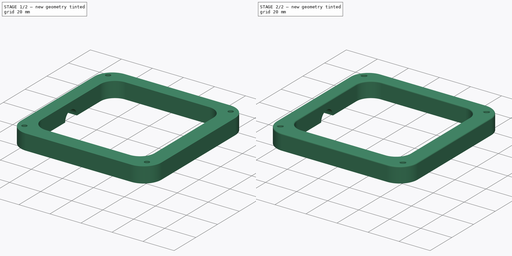
[diagram: build sequence overview — one tinted view per stage of 2, left to right]
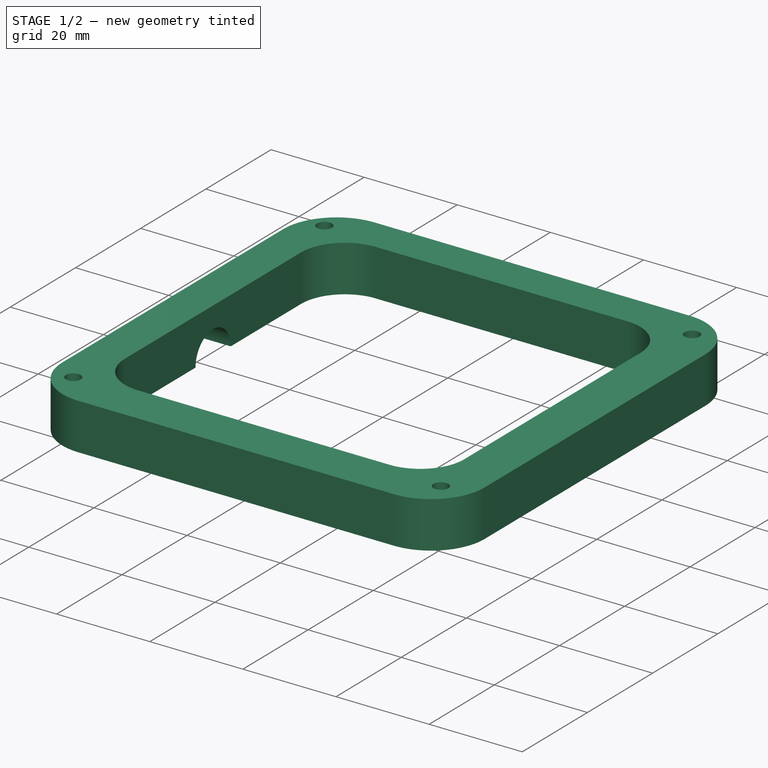
[diagram: stage 1 of 2 — iso view after this stage's code; geometry added in this stage tinted green]
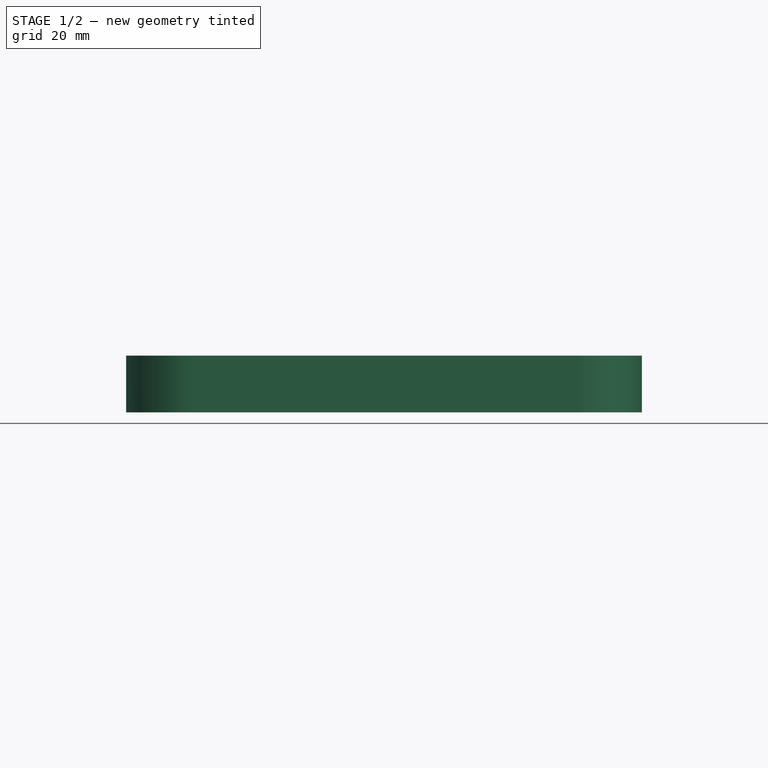
[diagram: stage 1 of 2 — front view after this stage's code; geometry added in this stage tinted green]
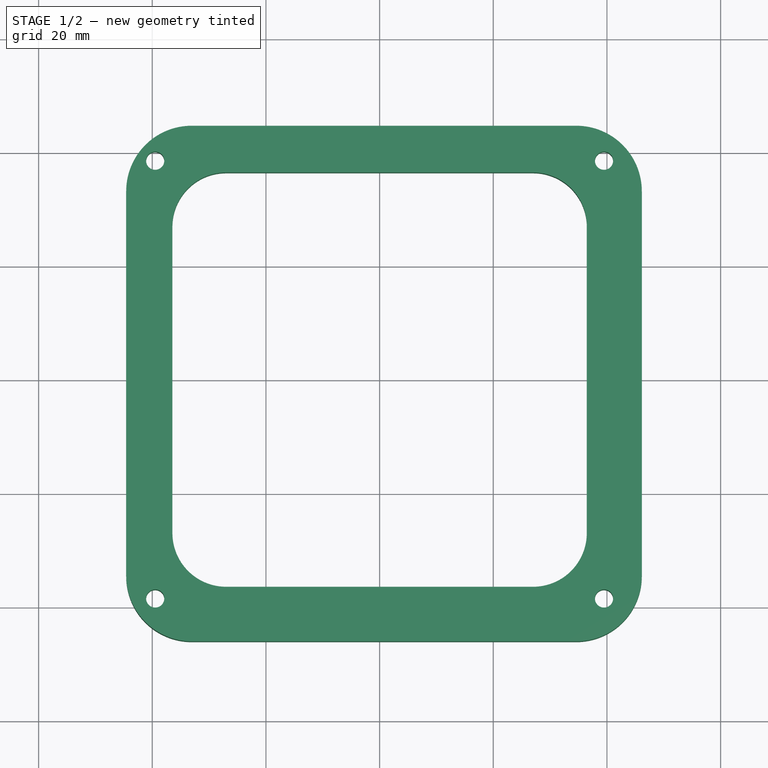
[diagram: stage 1 of 2 — top view after this stage's code; geometry added in this stage tinted green]
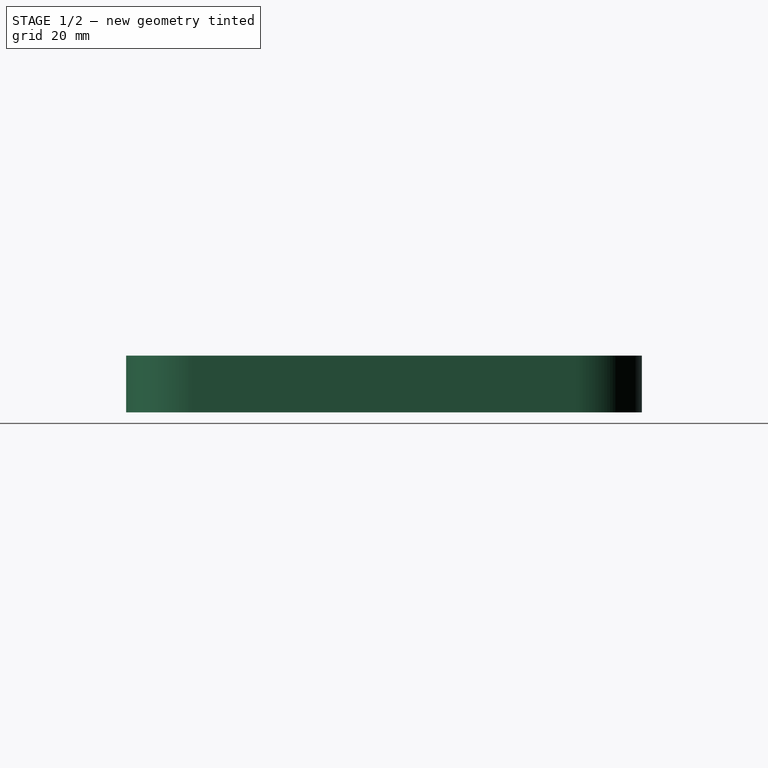
[diagram: stage 1 of 2 — right view after this stage's code; geometry added in this stage tinted green]
FCSTD DOCUMENT  (FreeCAD 0.16R)
Label: thrust_bearing_mount_base
License: All rights reserved
LicenseURL: http://en.wikipedia.org/wiki/All_rights_reserved
objects: Sketcher::SketchObject×2, PartDesign::Pad×1, PartDesign::Pocket×1, PartDesign::Fillet×1
note: 7 computed .brp shape members not serialized (recipe doc carries the construction recipe); baked Part::Feature solids carry a one-line shape summary decoded from their .brp

FEATURE [Sketcher::SketchObject] Sketch
  sketch-geometry (24):
    g0: LineSegment StartX=-27 StartY=36.4584 StartZ=0 EndX=27 EndY=36.4584 EndZ=0
    g1: LineSegment StartX=36.4584 StartY=27 StartZ=0 EndX=36.4584 EndY=-27 EndZ=0
    g2: LineSegment StartX=27 StartY=-36.4584 StartZ=0 EndX=-27 EndY=-36.4584 EndZ=0
    g3: LineSegment StartX=-36.4584 StartY=-27 StartZ=0 EndX=-36.4584 EndY=27 EndZ=0
    g4: ArcOfCircle CenterX=-27 CenterY=27 CenterZ=0 NormalX=0 NormalY=0 NormalZ=1 Radius=9.45841 StartAngle=1.5708 EndAngle=3.14159
    g5: ArcOfCircle CenterX=-27 CenterY=-27 CenterZ=0 NormalX=0 NormalY=0 NormalZ=1 Radius=9.45841 StartAngle=3.14159 EndAngle=4.71239
    g6: ArcOfCircle CenterX=27 CenterY=-27 CenterZ=0 NormalX=0 NormalY=0 NormalZ=1 Radius=9.45841 StartAngle=4.71239 EndAngle=6.28319
    g7: ArcOfCircle CenterX=27 CenterY=27 CenterZ=0 NormalX=0 NormalY=0 NormalZ=1 Radius=9.45841 StartAngle=0 EndAngle=1.5708
    g8: LineSegment StartX=-33.0603 StartY=44.6754 StartZ=0 EndX=34.6068 EndY=44.6754 EndZ=0
    g9: LineSegment StartX=46.1376 StartY=33.1446 StartZ=0 EndX=46.1376 EndY=-34.5225 EndZ=0
    g10: LineSegment StartX=34.6068 StartY=-46.0533 StartZ=0 EndX=-33.0603 EndY=-46.0533 EndZ=0
    g11: LineSegment StartX=-44.5911 StartY=-34.5225 StartZ=0 EndX=-44.5911 EndY=33.1446 EndZ=0
    g12: ArcOfCircle CenterX=-33.0603 CenterY=33.1446 CenterZ=0 NormalX=0 NormalY=0 NormalZ=1 Radius=11.5308 StartAngle=1.5708 EndAngle=3.14159
    g13: ArcOfCircle CenterX=34.6068 CenterY=33.1446 CenterZ=0 NormalX=0 NormalY=0 NormalZ=1 Radius=11.5308 StartAngle=0 EndAngle=1.5708
    g14: ArcOfCircle CenterX=34.6068 CenterY=-34.5225 CenterZ=0 NormalX=0 NormalY=0 NormalZ=1 Radius=11.5308 StartAngle=4.71239 EndAngle=6.28319
    g15: ArcOfCircle CenterX=-33.0603 CenterY=-34.5225 CenterZ=0 NormalX=0 NormalY=0 NormalZ=1 Radius=11.5308 StartAngle=3.14159 EndAngle=4.71239
    g16: LineSegment [constr] StartX=-39.4855 StartY=38.52 StartZ=0 EndX=39.4855 EndY=38.52 EndZ=0
    g17: LineSegment [constr] StartX=39.4855 StartY=38.52 StartZ=0 EndX=39.4855 EndY=-38.52 EndZ=0
    g18: LineSegment [constr] StartX=39.4855 StartY=-38.52 StartZ=0 EndX=-39.4855 EndY=-38.52 EndZ=0
    g19: LineSegment [constr] StartX=-39.4855 StartY=-38.52 StartZ=0 EndX=-39.4855 EndY=38.52 EndZ=0
    g20: Circle CenterX=-39.4855 CenterY=38.52 CenterZ=0 NormalX=0 NormalY=0 NormalZ=1 Radius=1.59803
    g21: Circle CenterX=39.4855 CenterY=38.52 CenterZ=0 NormalX=0 NormalY=0 NormalZ=1 Radius=1.59803
    g22: Circle CenterX=39.4855 CenterY=-38.52 CenterZ=0 NormalX=0 NormalY=0 NormalZ=1 Radius=1.59803
    g23: Circle CenterX=-39.4855 CenterY=-38.52 CenterZ=0 NormalX=0 NormalY=0 NormalZ=1 Radius=1.59803
  constraints (51):
    c: Horizontal(g0)
    c: Horizontal(g2)
    c: Vertical(g1)
    c: Vertical(g3)
    c: Equal(g0,g1)
    c: Tangent(g0,g4) = 1.5708
    c: Tangent(g3,g4) = 1.5708
    c: Tangent(g2,g5) = 1.5708
    c: Tangent(g3,g5) = 1.5708
    c: Tangent(g1,g6) = 1.5708
    c: Tangent(g2,g6) = 1.5708
    c: Tangent(g0,g7) = 1.5708
    c: Tangent(g1,g7) = 1.5708
    c: Symmetric(g7,g5,g-1)
    c: Symmetric(g4,g6,g-1)
    c: Equal(g5,g6)
    c: DistanceY(g3,g3) = 54
    c: Equal(g2,g3)
    c: Horizontal(g8)
    c: Horizontal(g10)
    c: Vertical(g9)
    c: Vertical(g11)
    c: Equal(g8,g9)
    c: Tangent(g8,g12) = 1.5708
    c: Tangent(g11,g12) = 1.5708
    c: Tangent(g8,g13) = 1.5708
    c: Tangent(g9,g13) = 1.5708
    c: Tangent(g9,g14) = 1.5708
    c: Tangent(g10,g14) = 1.5708
    c: Tangent(g10,g15) = 1.5708
    c: Tangent(g11,g15) = 1.5708
    c: Equal(g11,g10)
    c: Equal(g12,g13)
    c: Equal(g14,g15)
    c: Coincident(g16,g17)
    c: Coincident(g17,g18)
    c: Coincident(g18,g19)
    c: Coincident(g19,g16)
    c: Horizontal(g16)
    c: Horizontal(g18)
    c: Vertical(g17)
    c: Vertical(g19)
    c: Coincident(g20,g16)
    c: Coincident(g21,g16)
    c: Coincident(g22,g17)
    c: Coincident(g23,g18)
    c: Radius(g23) = 1.59803
    c: Equal(g23,g22)
    c: Equal(g23,g21)
    c: Equal(g23,g20)
    c: Symmetric(g16,g18,g-1)
FEATURE [PartDesign::Pad] Pad
  Length = 10
  Length2 = 100
  Sketch = -> Sketch
  Type = 0
FEATURE [Sketcher::SketchObject] Sketch001
  Placement = pos=(-44.5911,0,0) rot=(0.57735,-0.57735,-0.57735;2.0944rad)
  Support = -> Pad [Face1]
  sketch-geometry (1):
    g0: Circle CenterX=-0.059414 CenterY=0.010164 CenterZ=0 NormalX=0 NormalY=0 NormalZ=1 Radius=5.3998
FEATURE [PartDesign::Pocket] Pocket
  Length = 10
  Sketch = -> Sketch001
  Type = 0
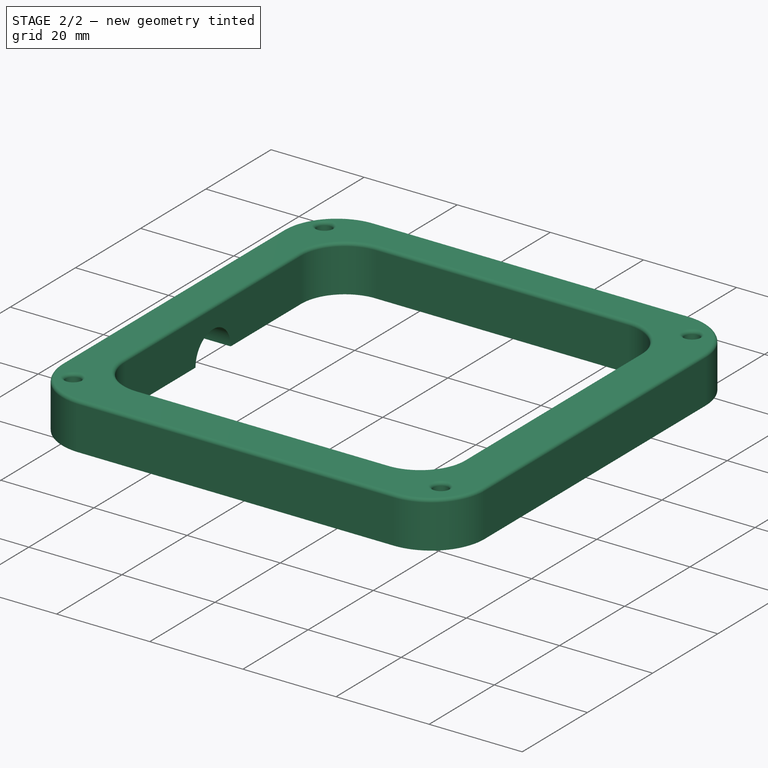
[diagram: stage 2 of 2 — iso view after this stage's code; geometry added in this stage tinted green]
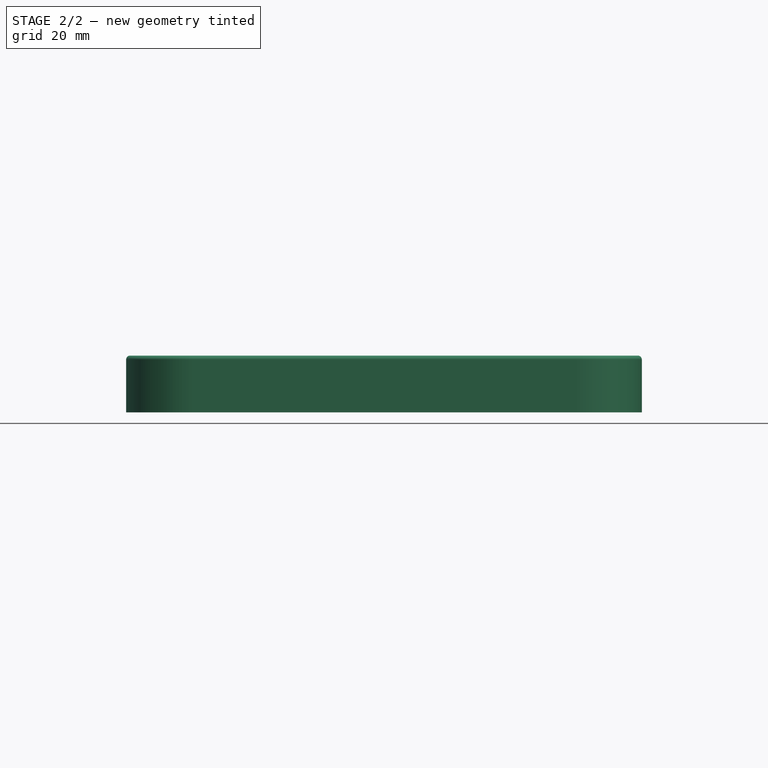
[diagram: stage 2 of 2 — front view after this stage's code; geometry added in this stage tinted green]
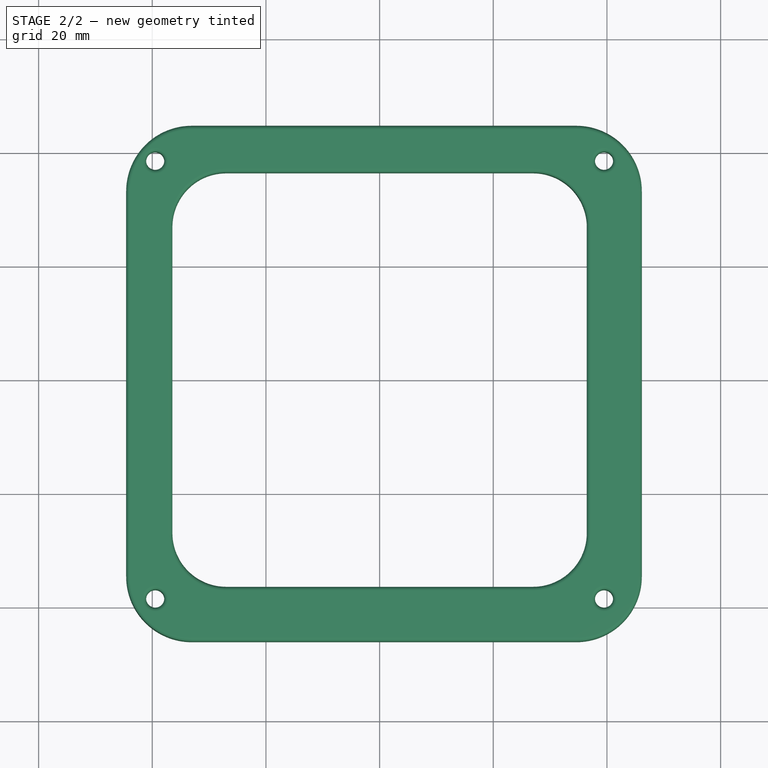
[diagram: stage 2 of 2 — top view after this stage's code; geometry added in this stage tinted green]
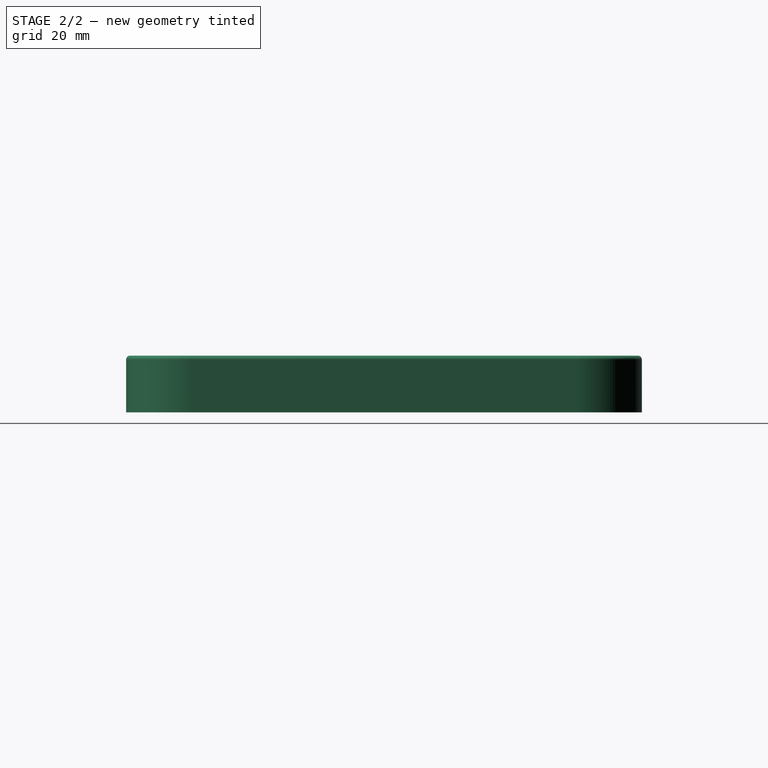
[diagram: stage 2 of 2 — right view after this stage's code; geometry added in this stage tinted green]
FEATURE [PartDesign::Fillet] Fillet
  Base = -> Pocket [Edge6,Edge34,Edge35,Edge36,Edge37,Edge38,Edge39,Edge40,Edge41,Edge42,Edge43,Edge44,Edge45,Edge46,Edge47,Edge48,Edge49,Edge50,Edge51,Edge52]
  Radius = 0.7
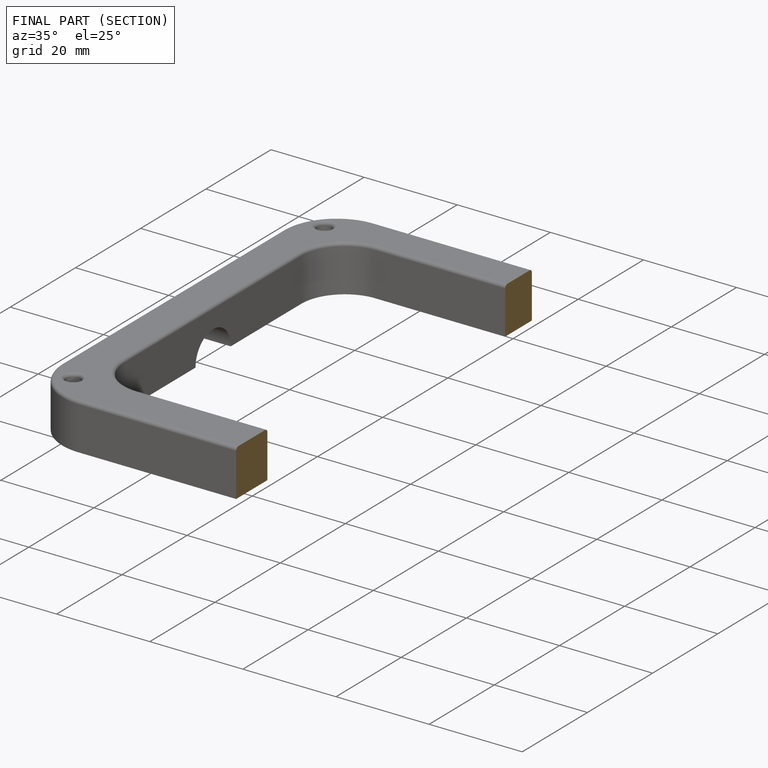
[diagram: finished part — half-section view (interior)]
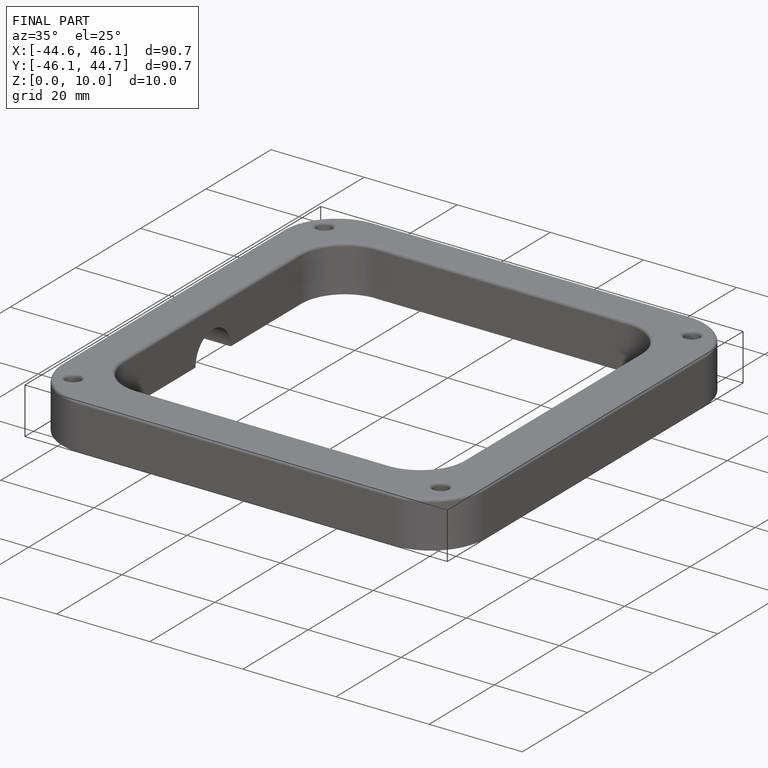
[diagram: finished part — iso view with bounding-box wireframe]
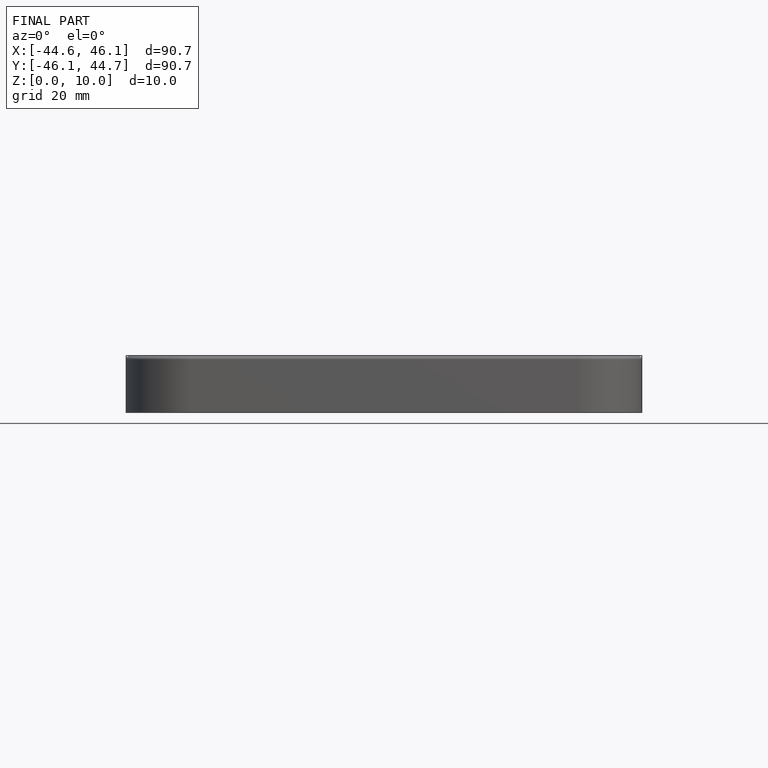
[diagram: finished part — front view with bounding-box wireframe]
